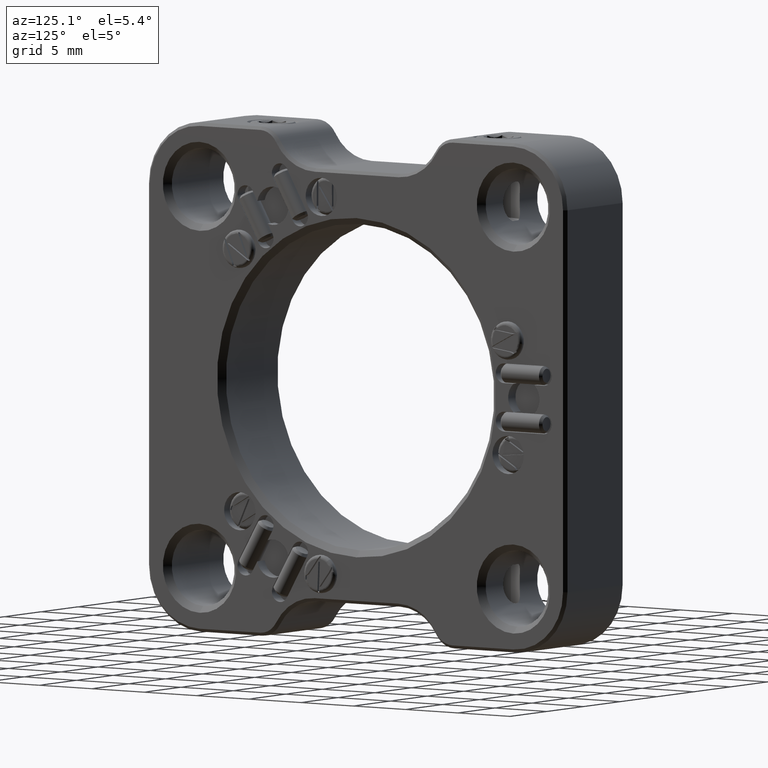
[diagram: clean part render]
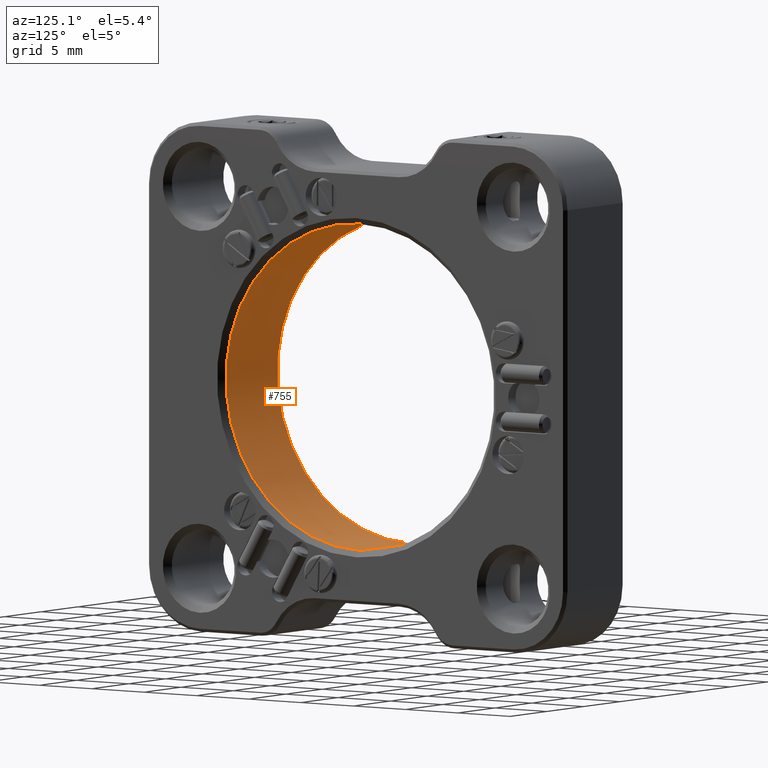
[diagram: same view with one face highlighted and labeled with its STEP entity id]
A machine part, auxiliary view. The second image highlights one B-rep face of the part: STEP entity #755.
In plain terms, the highlighted cylindrical surface (partial cylindrical patch) has radius 12.827 mm, axis along (1, -0, -0).
Its self-contained STEP definition (entity closure, byte-faithful):
#755 = ADVANCED_FACE ( 'NONE', ( #12989 ), #13232, .F. ) ;
#828 = CARTESIAN_POINT ( 'NONE',  ( -3.500000000000001332, 1.570854449266309722E-15, 12.82699999999999818 ) ) ;
#861 = DIRECTION ( 'NONE',  ( 1.000000000000000000, -0.000000000000000000, -0.000000000000000000 ) ) ;
#2175 = AXIS2_PLACEMENT_3D ( 'NONE', #17799, #17927, #8800 ) ;
#4178 = DIRECTION ( 'NONE',  ( 0.000000000000000000, 0.000000000000000000, -1.000000000000000000 ) ) ;
#5057 = CARTESIAN_POINT ( 'NONE',  ( -3.500000000000001332, 0.000000000000000000, -12.82699999999999818 ) ) ;
#6254 = EDGE_CURVE ( 'NONE', #9885, #15848, #6710, .T. ) ;
#6261 = VERTEX_POINT ( 'NONE', #828 ) ;
#6458 = CARTESIAN_POINT ( 'NONE',  ( -4.000000000000000000, 0.000000000000000000, -12.82699999999999818 ) ) ;
#6710 = LINE ( 'NONE', #6458, #11072 ) ;
#8401 = AXIS2_PLACEMENT_3D ( 'NONE', #11792, #861, #14774 ) ;
#8484 = ORIENTED_EDGE ( 'NONE', *, *, #14214, .T. ) ;
#8572 = CIRCLE ( 'NONE', #15517, 12.82699999999999818 ) ;
#8800 = DIRECTION ( 'NONE',  ( 0.000000000000000000, 0.000000000000000000, -1.000000000000000000 ) ) ;
#8965 = CARTESIAN_POINT ( 'NONE',  ( -3.500000000000001332, 0.000000000000000000, 0.000000000000000000 ) ) ;
#9481 = DIRECTION ( 'NONE',  ( 1.000000000000000000, -0.000000000000000000, -0.000000000000000000 ) ) ;
#9885 = VERTEX_POINT ( 'NONE', #5057 ) ;
#10728 = DIRECTION ( 'NONE',  ( 1.000000000000000000, -0.000000000000000000, -0.000000000000000000 ) ) ;
#11072 = VECTOR ( 'NONE', #9481, 1000.000000000000000 ) ;
#11593 = EDGE_CURVE ( 'NONE', #12049, #15848, #17279, .T. ) ;
#11792 = CARTESIAN_POINT ( 'NONE',  ( -4.000000000000000000, 0.000000000000000000, 0.000000000000000000 ) ) ;
#11949 = DIRECTION ( 'NONE',  ( -1.000000000000000000, -0.000000000000000000, -0.000000000000000000 ) ) ;
#12049 = VERTEX_POINT ( 'NONE', #13178 ) ;
#12989 = FACE_OUTER_BOUND ( 'NONE', #17840, .T. ) ;
#13178 = CARTESIAN_POINT ( 'NONE',  ( 3.499999999999989342, 1.601470619244994495E-15, 12.82699999999999818 ) ) ;
#13225 = ORIENTED_EDGE ( 'NONE', *, *, #6254, .F. ) ;
#13232 = CYLINDRICAL_SURFACE ( 'NONE', #8401, 12.82699999999999818 ) ;
#13329 = VECTOR ( 'NONE', #10728, 1000.000000000000000 ) ;
#13583 = CARTESIAN_POINT ( 'NONE',  ( 3.499999999999989342, 0.000000000000000000, -12.82699999999999818 ) ) ;
#14214 = EDGE_CURVE ( 'NONE', #9885, #6261, #8572, .T. ) ;
#14774 = DIRECTION ( 'NONE',  ( 0.000000000000000000, 0.000000000000000000, -1.000000000000000000 ) ) ;
#15517 = AXIS2_PLACEMENT_3D ( 'NONE', #8965, #11949, #4178 ) ;
#15553 = CARTESIAN_POINT ( 'NONE',  ( -4.000000000000000000, 1.570854449266309722E-15, 12.82699999999999818 ) ) ;
#15848 = VERTEX_POINT ( 'NONE', #13583 ) ;
#17279 = CIRCLE ( 'NONE', #2175, 12.82699999999999818 ) ;
#17384 = ORIENTED_EDGE ( 'NONE', *, *, #11593, .T. ) ;
#17799 = CARTESIAN_POINT ( 'NONE',  ( 3.499999999999989342, 0.000000000000000000, 0.000000000000000000 ) ) ;
#17840 = EDGE_LOOP ( 'NONE', ( #8484, #19638, #17384, #13225 ) ) ;
#17927 = DIRECTION ( 'NONE',  ( 1.000000000000000000, 0.000000000000000000, 0.000000000000000000 ) ) ;
#19042 = EDGE_CURVE ( 'NONE', #6261, #12049, #19368, .T. ) ;
#19368 = LINE ( 'NONE', #15553, #13329 ) ;
#19638 = ORIENTED_EDGE ( 'NONE', *, *, #19042, .T. ) ;